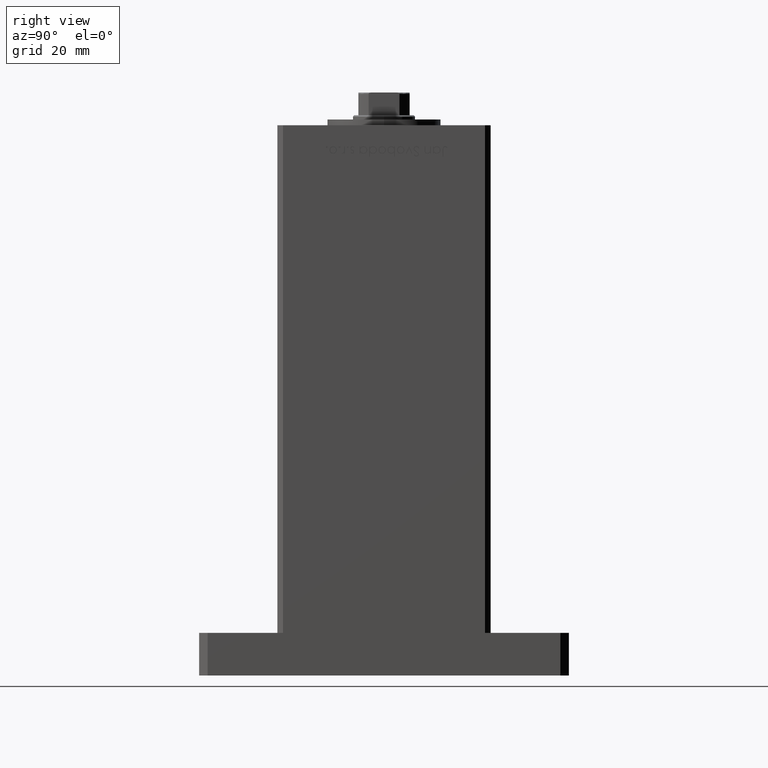
[diagram: clean part render]
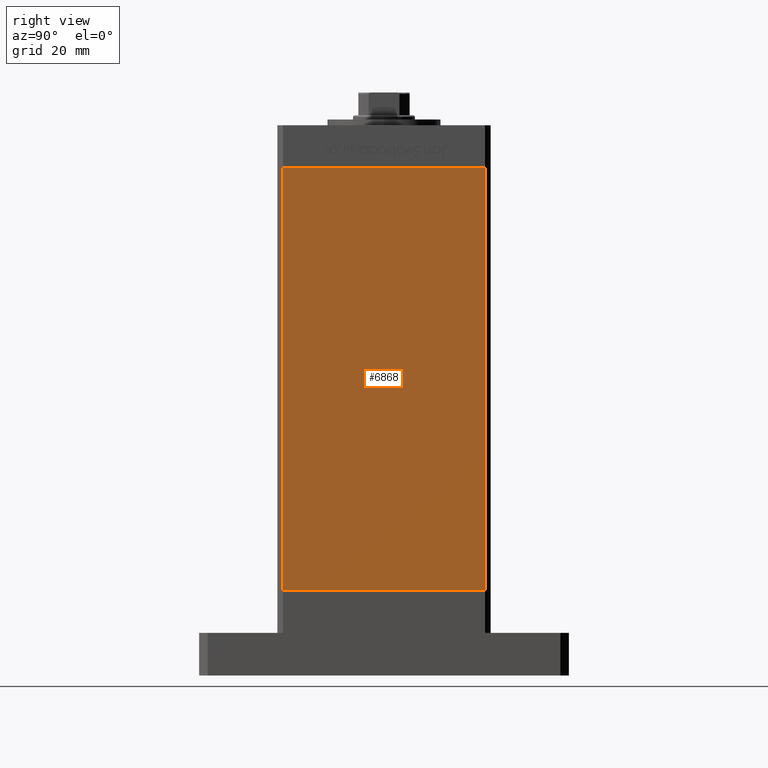
[diagram: same view with one face highlighted and labeled with its STEP entity id]
A machine part, right view. The second image highlights one B-rep face of the part: STEP entity #6868.
In plain terms, the highlighted planar face has unit normal (1, -0, 0).
Its self-contained STEP definition (entity closure, byte-faithful):
#1401 = VERTEX_POINT ( 'NONE', #19681 ) ;
#4520 = FACE_OUTER_BOUND ( 'NONE', #17690, .T. ) ;
#5762 = EDGE_CURVE ( 'NONE', #30338, #1401, #31767, .T. ) ;
#5763 = DIRECTION ( 'NONE',  ( 1.000000000000000000, -2.931927001650941360E-16, 0.000000000000000000 ) ) ;
#6301 = ORIENTED_EDGE ( 'NONE', *, *, #21026, .T. ) ;
#6868 = ADVANCED_FACE ( 'NONE', ( #4520 ), #20976, .T. ) ;
#6898 = LINE ( 'NONE', #35222, #28849 ) ;
#9956 = CARTESIAN_POINT ( 'NONE',  ( 42.50000000000000711, 35.50000000000001421, 148.5000000000000000 ) ) ;
#11294 = VERTEX_POINT ( 'NONE', #48458 ) ;
#11600 = LINE ( 'NONE', #52581, #37605 ) ;
#11859 = DIRECTION ( 'NONE',  ( -2.931927001650941360E-16, -1.000000000000000000, 0.000000000000000000 ) ) ;
#13007 = CARTESIAN_POINT ( 'NONE',  ( 42.49999999999998579, -35.50000000000000711, 0.000000000000000000 ) ) ;
#13698 = VECTOR ( 'NONE', #40367, 1000.000000000000000 ) ;
#17690 = EDGE_LOOP ( 'NONE', ( #33932, #46452, #41237, #6301 ) ) ;
#18510 = DIRECTION ( 'NONE',  ( -2.931927001650941360E-16, -1.000000000000000000, 0.000000000000000000 ) ) ;
#19681 = CARTESIAN_POINT ( 'NONE',  ( 42.50000000000000711, 35.50000000000001421, 0.000000000000000000 ) ) ;
#20083 = DIRECTION ( 'NONE',  ( -0.000000000000000000, -0.000000000000000000, -1.000000000000000000 ) ) ;
#20976 = PLANE ( 'NONE',  #31864 ) ;
#21026 = EDGE_CURVE ( 'NONE', #11294, #28994, #44890, .T. ) ;
#25477 = EDGE_CURVE ( 'NONE', #1401, #28994, #6898, .T. ) ;
#27988 = CARTESIAN_POINT ( 'NONE',  ( 42.50000000000000711, 35.50000000000001421, 148.5000000000000000 ) ) ;
#28849 = VECTOR ( 'NONE', #18510, 1000.000000000000000 ) ;
#28994 = VERTEX_POINT ( 'NONE', #13007 ) ;
#30338 = VERTEX_POINT ( 'NONE', #9956 ) ;
#31767 = LINE ( 'NONE', #27988, #13698 ) ;
#31864 = AXIS2_PLACEMENT_3D ( 'NONE', #47037, #5763, #49836 ) ;
#32174 = EDGE_CURVE ( 'NONE', #30338, #11294, #11600, .T. ) ;
#33932 = ORIENTED_EDGE ( 'NONE', *, *, #25477, .F. ) ;
#35222 = CARTESIAN_POINT ( 'NONE',  ( 42.50000000000000711, 35.50000000000001421, 0.000000000000000000 ) ) ;
#37605 = VECTOR ( 'NONE', #11859, 1000.000000000000000 ) ;
#40367 = DIRECTION ( 'NONE',  ( -0.000000000000000000, -0.000000000000000000, -1.000000000000000000 ) ) ;
#41237 = ORIENTED_EDGE ( 'NONE', *, *, #32174, .T. ) ;
#41583 = VECTOR ( 'NONE', #20083, 1000.000000000000000 ) ;
#44890 = LINE ( 'NONE', #49468, #41583 ) ;
#46452 = ORIENTED_EDGE ( 'NONE', *, *, #5762, .F. ) ;
#47037 = CARTESIAN_POINT ( 'NONE',  ( 42.50000000000000711, 35.50000000000001421, 148.5000000000000000 ) ) ;
#48458 = CARTESIAN_POINT ( 'NONE',  ( 42.49999999999998579, -35.50000000000000711, 148.5000000000000000 ) ) ;
#49468 = CARTESIAN_POINT ( 'NONE',  ( 42.49999999999998579, -35.50000000000000711, 148.5000000000000000 ) ) ;
#49836 = DIRECTION ( 'NONE',  ( 2.931927001650941360E-16, 1.000000000000000000, 0.000000000000000000 ) ) ;
#52581 = CARTESIAN_POINT ( 'NONE',  ( 42.50000000000000711, 35.50000000000001421, 148.5000000000000000 ) ) ;